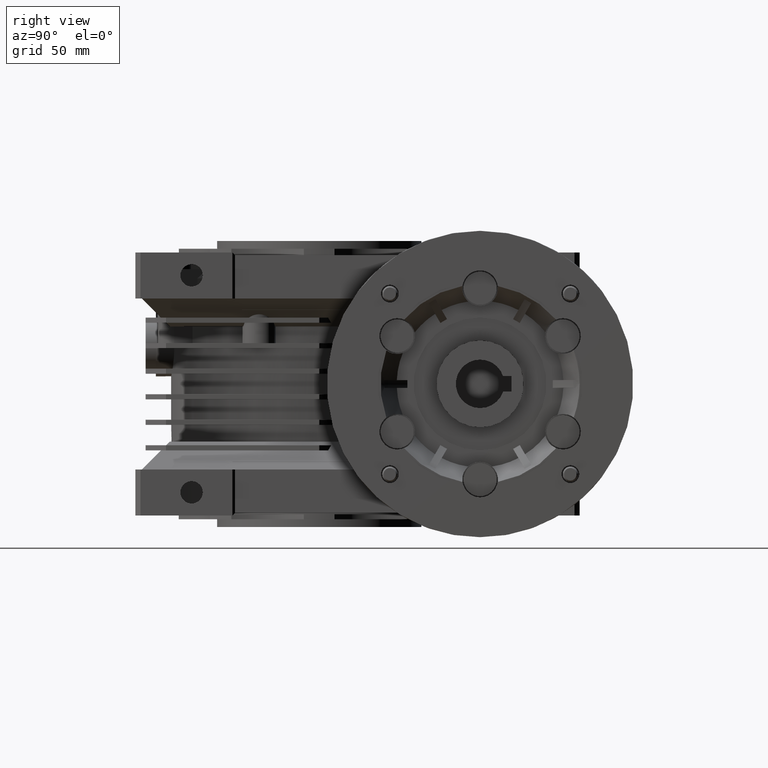
[diagram: clean part render]
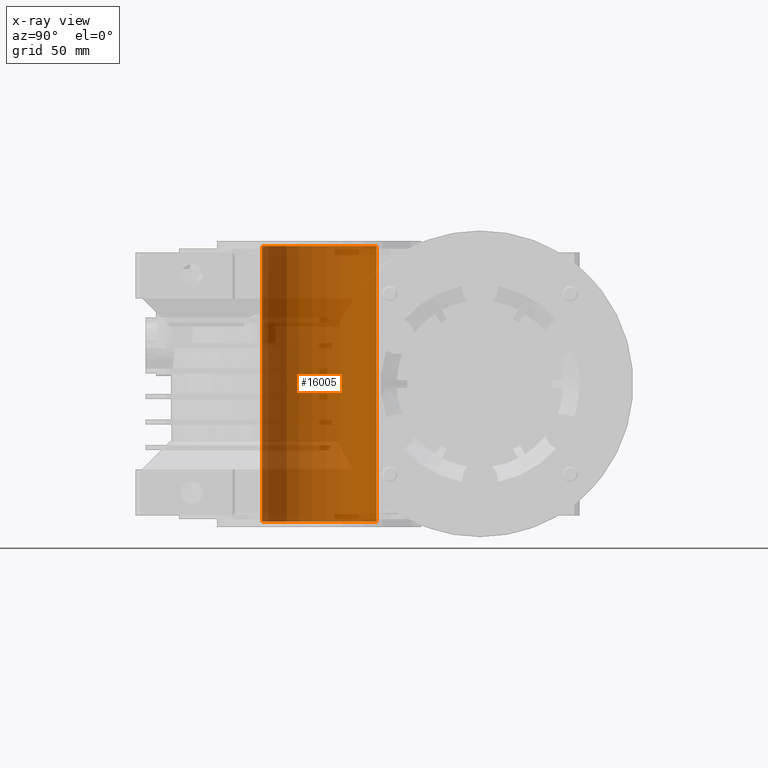
[diagram: x-ray — body ghosted, one internal face saturated and labeled with its STEP entity id]
A machine part, right view, then the same camera in x-ray: the body is ghosted and one INTERNAL B-rep face — a face not visible from any outside direction — is saturated and labeled: STEP entity #16005.
In plain terms, the highlighted cylindrical surface (partial cylindrical patch) has radius 22.5 mm, axis along (0, 0, 1).
Its self-contained STEP definition (entity closure, byte-faithful):
#2320 = DIRECTION ( 'NONE',  ( 0.000000000000000000, 0.000000000000000000, 1.000000000000000000 ) ) ;
#3620 = VERTEX_POINT ( 'NONE', #19407 ) ;
#4056 = CARTESIAN_POINT ( 'NONE',  ( 0.000000000000000000, 22.50000000000000000, 54.00000000000000000 ) ) ;
#4695 = CARTESIAN_POINT ( 'NONE',  ( 0.000000000000000000, 22.50000000000000000, -54.00000000000000000 ) ) ;
#5484 = ORIENTED_EDGE ( 'NONE', *, *, #20005, .T. ) ;
#7536 = VERTEX_POINT ( 'NONE', #4695 ) ;
#8295 = VERTEX_POINT ( 'NONE', #12940 ) ;
#9397 = DIRECTION ( 'NONE',  ( 0.000000000000000000, 0.000000000000000000, 1.000000000000000000 ) ) ;
#11797 = EDGE_LOOP ( 'NONE', ( #24032, #35095, #5484, #29676 ) ) ;
#12870 = EDGE_CURVE ( 'NONE', #7536, #3620, #26937, .T. ) ;
#12940 = CARTESIAN_POINT ( 'NONE',  ( -2.755455298081544778E-15, -22.50000000000000000, 54.00000000000000000 ) ) ;
#14088 = DIRECTION ( 'NONE',  ( 0.000000000000000000, 0.000000000000000000, 1.000000000000000000 ) ) ;
#16005 = ADVANCED_FACE ( 'NONE', ( #30062 ), #34564, .F. ) ;
#16422 = AXIS2_PLACEMENT_3D ( 'NONE', #27888, #2320, #45744 ) ;
#16932 = LINE ( 'NONE', #38997, #20884 ) ;
#19035 = EDGE_CURVE ( 'NONE', #8295, #24303, #36298, .T. ) ;
#19407 = CARTESIAN_POINT ( 'NONE',  ( -2.755455298081544778E-15, -22.50000000000000000, -54.00000000000000000 ) ) ;
#20005 = EDGE_CURVE ( 'NONE', #7536, #24303, #42757, .T. ) ;
#20884 = VECTOR ( 'NONE', #35699, 1000.000000000000000 ) ;
#24032 = ORIENTED_EDGE ( 'NONE', *, *, #45106, .F. ) ;
#24303 = VERTEX_POINT ( 'NONE', #4056 ) ;
#25028 = DIRECTION ( 'NONE',  ( 0.000000000000000000, 1.000000000000000000, 0.000000000000000000 ) ) ;
#25633 = AXIS2_PLACEMENT_3D ( 'NONE', #45097, #9397, #38078 ) ;
#26937 = CIRCLE ( 'NONE', #16422, 22.50000000000000000 ) ;
#27888 = CARTESIAN_POINT ( 'NONE',  ( 0.000000000000000000, 0.000000000000000000, -54.00000000000000000 ) ) ;
#28327 = DIRECTION ( 'NONE',  ( 0.000000000000000000, 0.000000000000000000, -1.000000000000000000 ) ) ;
#29676 = ORIENTED_EDGE ( 'NONE', *, *, #19035, .F. ) ;
#30062 = FACE_OUTER_BOUND ( 'NONE', #11797, .T. ) ;
#31974 = CARTESIAN_POINT ( 'NONE',  ( 0.000000000000000000, 22.50000000000000000, -59.00000000000000000 ) ) ;
#34564 = CYLINDRICAL_SURFACE ( 'NONE', #25633, 22.50000000000000000 ) ;
#35095 = ORIENTED_EDGE ( 'NONE', *, *, #12870, .F. ) ;
#35699 = DIRECTION ( 'NONE',  ( 0.000000000000000000, 0.000000000000000000, 1.000000000000000000 ) ) ;
#36298 = CIRCLE ( 'NONE', #42320, 22.50000000000000000 ) ;
#37895 = VECTOR ( 'NONE', #14088, 1000.000000000000000 ) ;
#38078 = DIRECTION ( 'NONE',  ( 0.000000000000000000, 1.000000000000000000, 0.000000000000000000 ) ) ;
#38997 = CARTESIAN_POINT ( 'NONE',  ( -2.755455298081544778E-15, -22.50000000000000000, -59.00000000000000000 ) ) ;
#42320 = AXIS2_PLACEMENT_3D ( 'NONE', #42873, #28327, #25028 ) ;
#42757 = LINE ( 'NONE', #31974, #37895 ) ;
#42873 = CARTESIAN_POINT ( 'NONE',  ( 0.000000000000000000, 0.000000000000000000, 54.00000000000000000 ) ) ;
#45097 = CARTESIAN_POINT ( 'NONE',  ( 0.000000000000000000, 0.000000000000000000, -59.00000000000000000 ) ) ;
#45106 = EDGE_CURVE ( 'NONE', #3620, #8295, #16932, .T. ) ;
#45744 = DIRECTION ( 'NONE',  ( 0.000000000000000000, 1.000000000000000000, 0.000000000000000000 ) ) ;